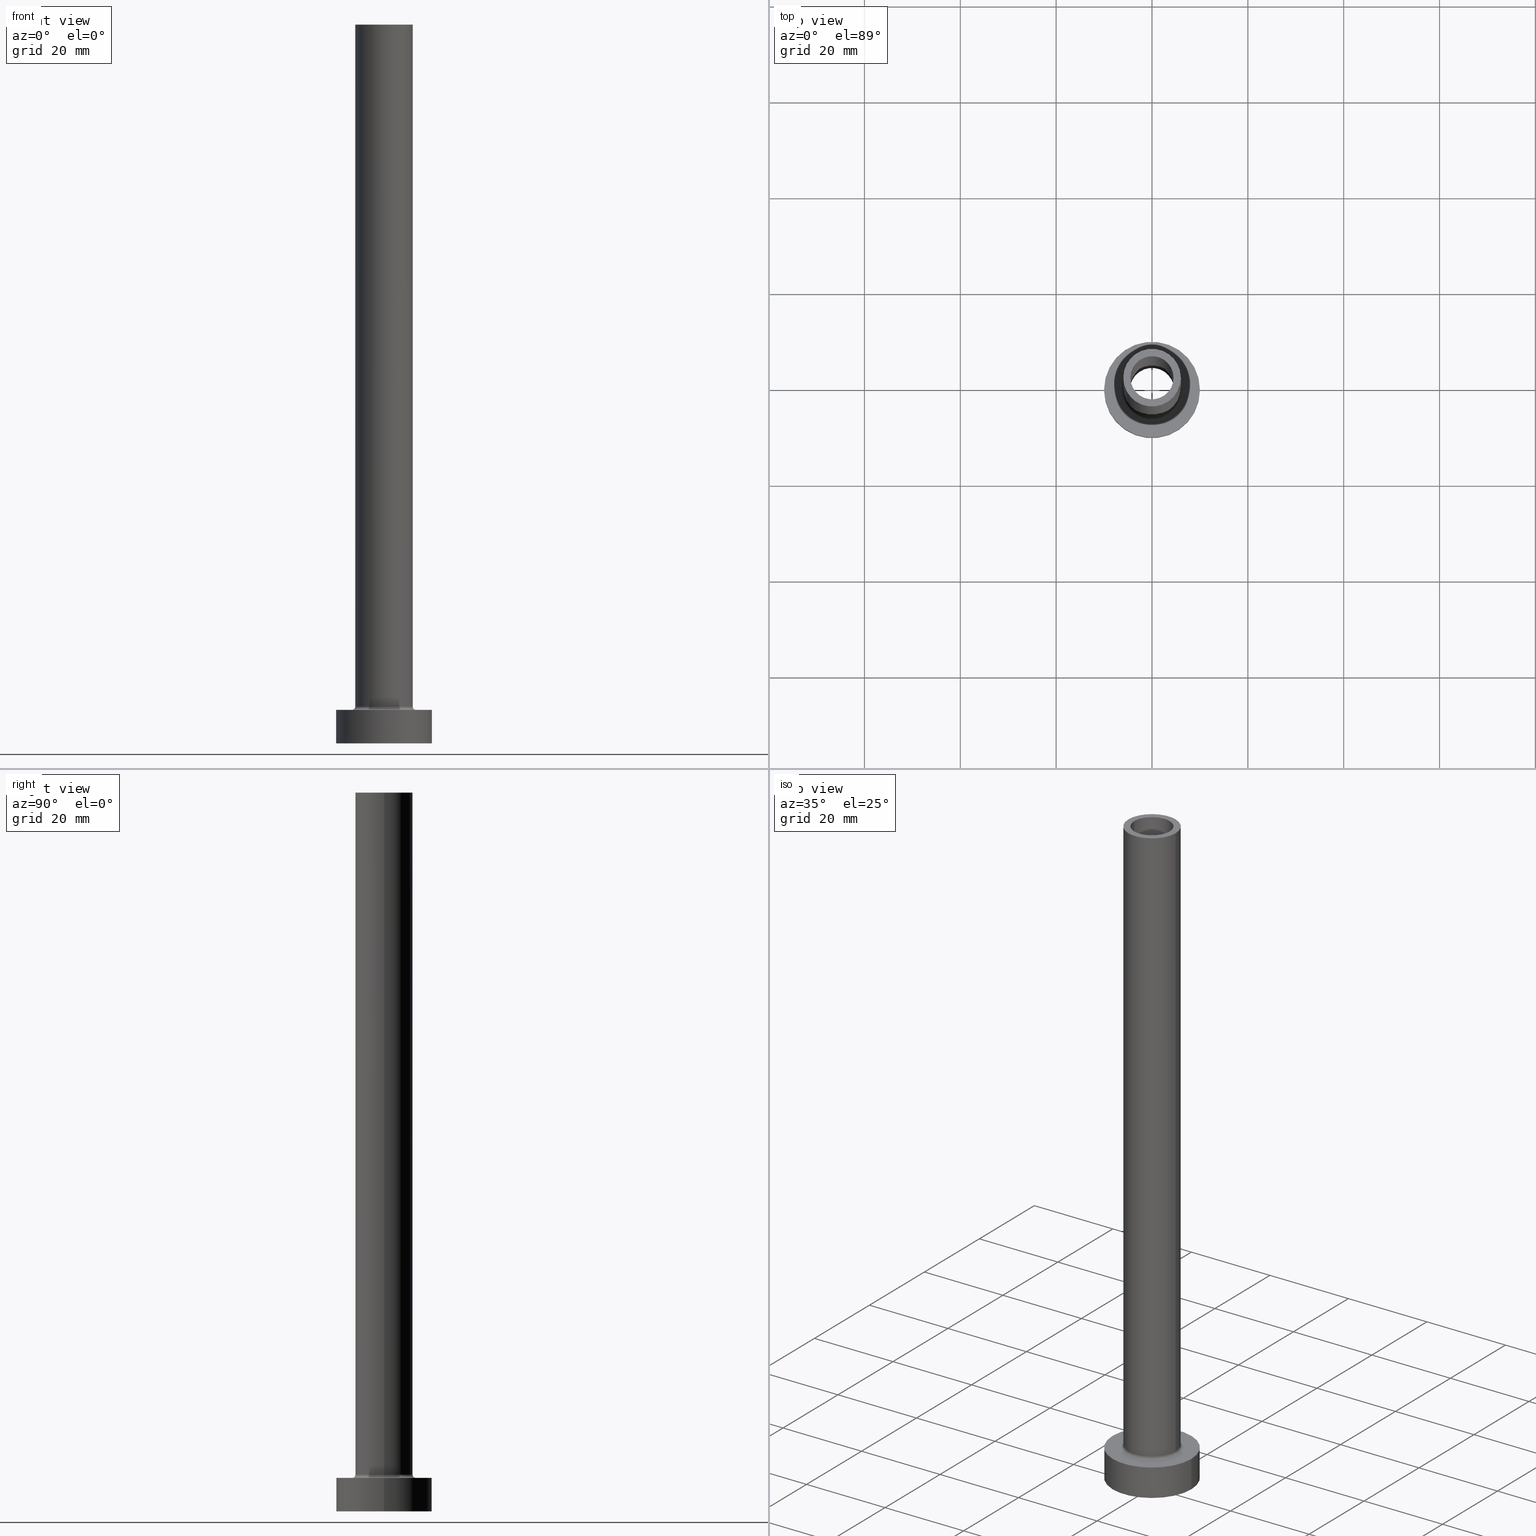
[diagram: canonical four-view strip — front | top / right | iso, engineering-drawing reading convention]
A machine part, canonical four-view strip (front | top / right | iso — engineering-drawing reading convention). The complete STEP part file that produces these views, byte-faithful:
ISO-10303-21;
HEADER;
FILE_DESCRIPTION (( 'STEP AP203' ),
    '1' );
FILE_NAME ('cd06.STEP',
    '2023-02-13T11:03:30',
    ( '' ),
    ( '' ),
    'SwSTEP 2.0',
    'SolidWorks 2019',
    '' );
FILE_SCHEMA (( 'CONFIG_CONTROL_DESIGN' ));
ENDSEC;

DATA;
#1 = AXIS2_PLACEMENT_3D ( 'NONE', #279, #373, #58 ) ;
#2 = CARTESIAN_POINT ( 'NONE',  ( 0.000000000000000000, 0.000000000000000000, 150.0000000000000000 ) ) ;
#3 = AXIS2_PLACEMENT_3D ( 'NONE', #50, #224, #45 ) ;
#4 = ORIENTED_EDGE ( 'NONE', *, *, #384, .F. ) ;
#5 = DATE_AND_TIME ( #359, #346 ) ;
#6 = EDGE_CURVE ( 'NONE', #240, #59, #307, .T. ) ;
#7 = ORIENTED_EDGE ( 'NONE', *, *, #6, .F. ) ;
#8 =( LENGTH_UNIT ( ) NAMED_UNIT ( * ) SI_UNIT ( .MILLI., .METRE. ) );
#9 = PLANE ( 'NONE',  #378 ) ;
#10 = EDGE_LOOP ( 'NONE', ( #173, #110, #321, #30 ) ) ;
#11 = CIRCLE ( 'NONE', #103, 10.00000000000000000 ) ;
#12 = CARTESIAN_POINT ( 'NONE',  ( -4.500000000000000000, 0.000000000000000000, 150.0000000000000000 ) ) ;
#13 = EDGE_CURVE ( 'NONE', #422, #59, #354, .T. ) ;
#14 = CARTESIAN_POINT ( 'NONE',  ( -10.00000000000000000, 0.000000000000000000, 7.000000000000000000 ) ) ;
#15 = ORIENTED_EDGE ( 'NONE', *, *, #88, .F. ) ;
#16 = LINE ( 'NONE', #14, #440 ) ;
#17 = CARTESIAN_POINT ( 'NONE',  ( 6.000000000000000888, 7.347880794884120722E-16, 150.0000000000000000 ) ) ;
#18 = EDGE_LOOP ( 'NONE', ( #208, #333 ) ) ;
#19 = LOCAL_TIME ( 12, 3, 30.00000000000000000, #281 ) ;
#20 = EDGE_CURVE ( 'NONE', #348, #260, #363, .T. ) ;
#21 = DIRECTION ( 'NONE',  ( 0.000000000000000000, 0.000000000000000000, 1.000000000000000000 ) ) ;
#22 = CARTESIAN_POINT ( 'NONE',  ( 0.000000000000000000, 0.000000000000000000, 105.0000000000000000 ) ) ;
#23 = CARTESIAN_POINT ( 'NONE',  ( 0.000000000000000000, 0.000000000000000000, 105.0000000000000000 ) ) ;
#24 = EDGE_LOOP ( 'NONE', ( #328, #123 ) ) ;
#25 = ADVANCED_BREP_SHAPE_REPRESENTATION ( 'cd06', ( #329, #168 ), #116 ) ;
#26 = AXIS2_PLACEMENT_3D ( 'NONE', #342, #101, #374 ) ;
#27 = CARTESIAN_POINT ( 'NONE',  ( -6.700000000000001066, 8.205133554287267548E-16, 7.000000000000006217 ) ) ;
#28 = ADVANCED_FACE ( 'NONE', ( #411 ), #419, .F. ) ;
#29 = CARTESIAN_POINT ( 'NONE',  ( 0.000000000000000000, 0.000000000000000000, 0.000000000000000000 ) ) ;
#30 = ORIENTED_EDGE ( 'NONE', *, *, #68, .F. ) ;
#31 = CIRCLE ( 'NONE', #287, 4.500000000000000000 ) ;
#32 = EDGE_LOOP ( 'NONE', ( #43, #189, #83, #383 ) ) ;
#33 = LOCAL_TIME ( 12, 3, 30.00000000000000000, #290 ) ;
#34 = EDGE_CURVE ( 'NONE', #59, #422, #31, .T. ) ;
#35 = DIRECTION ( 'NONE',  ( 0.000000000000000000, -1.000000000000000000, 0.000000000000000000 ) ) ;
#36 =( NAMED_UNIT ( * ) PLANE_ANGLE_UNIT ( ) SI_UNIT ( $, .RADIAN. ) );
#37 = CARTESIAN_POINT ( 'NONE',  ( 0.000000000000000000, 0.000000000000000000, 150.0000000000000000 ) ) ;
#38 = PERSON_AND_ORGANIZATION_ROLE ( 'design_owner' ) ;
#39 = ORIENTED_EDGE ( 'NONE', *, *, #435, .F. ) ;
#40 = APPROVAL_STATUS ( 'not_yet_approved' ) ;
#41 = PERSON ( 'NEUR�EN�', 'NEUR�EN�', 'NEUR�EN�', ('NEUR�EN�'), ('NEUR�EN�'), ('NEUR�EN�') ) ;
#42 = LOCAL_TIME ( 12, 3, 30.00000000000000000, #254 ) ;
#43 = ORIENTED_EDGE ( 'NONE', *, *, #241, .T. ) ;
#44 = APPROVAL_DATE_TIME ( #355, #367 ) ;
#45 = DIRECTION ( 'NONE',  ( 1.000000000000000000, 0.000000000000000000, 0.000000000000000000 ) ) ;
#46 = ADVANCED_FACE ( 'NONE', ( #165 ), #450, .F. ) ;
#47 = CARTESIAN_POINT ( 'NONE',  ( 4.650000000000000355, 5.694607616035192869E-16, 118.1521861300697935 ) ) ;
#48 = AXIS2_PLACEMENT_3D ( 'NONE', #210, #389, #351 ) ;
#49 = CC_DESIGN_SECURITY_CLASSIFICATION ( #335, ( #178 ) ) ;
#50 = CARTESIAN_POINT ( 'NONE',  ( 0.000000000000000000, 0.000000000000000000, 7.000000000000000000 ) ) ;
#51 = CARTESIAN_POINT ( 'NONE',  ( 0.000000000000000000, 0.000000000000000000, 7.000000000000000000 ) ) ;
#52 = ORIENTED_EDGE ( 'NONE', *, *, #444, .T. ) ;
#53 = FACE_OUTER_BOUND ( 'NONE', #318, .T. ) ;
#54 = DIRECTION ( 'NONE',  ( 1.000000000000000000, 0.000000000000000000, 0.000000000000000000 ) ) ;
#55 = CIRCLE ( 'NONE', #377, 4.500000000000000000 ) ;
#56 = ORIENTED_EDGE ( 'NONE', *, *, #241, .F. ) ;
#57 = AXIS2_PLACEMENT_3D ( 'NONE', #174, #77, #213 ) ;
#58 = DIRECTION ( 'NONE',  ( 1.000000000000000000, 0.000000000000000000, 0.000000000000000000 ) ) ;
#59 = VERTEX_POINT ( 'NONE', #243 ) ;
#60 = EDGE_CURVE ( 'NONE', #260, #348, #409, .T. ) ;
#61 = CARTESIAN_POINT ( 'NONE',  ( 0.000000000000000000, 0.000000000000000000, 7.000000000000000000 ) ) ;
#62 = CARTESIAN_POINT ( 'NONE',  ( 0.000000000000000000, 0.000000000000000000, 7.700000000000012612 ) ) ;
#63 = AXIS2_PLACEMENT_3D ( 'NONE', #297, #195, #343 ) ;
#64 = PRODUCT_DEFINITION_SHAPE ( 'NONE', 'NONE',  #403 ) ;
#65 = AXIS2_PLACEMENT_3D ( 'NONE', #51, #430, #438 ) ;
#66 = ORIENTED_EDGE ( 'NONE', *, *, #380, .F. ) ;
#67 = FACE_BOUND ( 'NONE', #379, .T. ) ;
#68 = EDGE_CURVE ( 'NONE', #387, #181, #268, .T. ) ;
#69 = AXIS2_PLACEMENT_3D ( 'NONE', #203, #35, #276 ) ;
#70 = FACE_OUTER_BOUND ( 'NONE', #439, .T. ) ;
#71 = EDGE_LOOP ( 'NONE', ( #239, #256 ) ) ;
#72 = ORGANIZATION ( 'NEUR�EN�', 'NEUR�EN�', '' ) ;
#73 = DIRECTION ( 'NONE',  ( -1.000000000000000000, 0.000000000000000000, 0.000000000000000000 ) ) ;
#74 = ORIENTED_EDGE ( 'NONE', *, *, #435, .T. ) ;
#75 = PERSON_AND_ORGANIZATION ( #41, #72 ) ;
#76 = CC_DESIGN_PERSON_AND_ORGANIZATION_ASSIGNMENT ( #218, #84, ( #403 ) ) ;
#77 = DIRECTION ( 'NONE',  ( 0.000000000000000000, 0.000000000000000000, 1.000000000000000000 ) ) ;
#78 = CALENDAR_DATE ( 2023, 13, 2 ) ;
#79 = DATE_TIME_ROLE ( 'creation_date' ) ;
#80 = AXIS2_PLACEMENT_3D ( 'NONE', #129, #416, #199 ) ;
#81 = CARTESIAN_POINT ( 'NONE',  ( -6.000000000000000888, 0.000000000000000000, 150.0000000000000000 ) ) ;
#82 = LOCAL_TIME ( 12, 3, 30.00000000000000000, #427 ) ;
#83 = ORIENTED_EDGE ( 'NONE', *, *, #20, .T. ) ;
#84 = PERSON_AND_ORGANIZATION_ROLE ( 'creator' ) ;
#85 = CARTESIAN_POINT ( 'NONE',  ( 0.000000000000000000, 0.000000000000000000, 105.0000000000000000 ) ) ;
#86 = ORIENTED_EDGE ( 'NONE', *, *, #451, .T. ) ;
#87 = CALENDAR_DATE ( 2023, 13, 2 ) ;
#88 = EDGE_CURVE ( 'NONE', #406, #300, #325, .T. ) ;
#89 = LINE ( 'NONE', #255, #253 ) ;
#90 = ORIENTED_EDGE ( 'NONE', *, *, #350, .F. ) ;
#91 = ORIENTED_EDGE ( 'NONE', *, *, #201, .F. ) ;
#92 = CARTESIAN_POINT ( 'NONE',  ( 4.500000000000000000, 5.510910596163087583E-16, 150.0000000000000000 ) ) ;
#93 = EDGE_CURVE ( 'NONE', #147, #260, #382, .T. ) ;
#94 = DIRECTION ( 'NONE',  ( 1.000000000000000000, 0.000000000000000000, 0.000000000000000000 ) ) ;
#95 = DIRECTION ( 'NONE',  ( 1.000000000000000000, 0.000000000000000000, 0.000000000000000000 ) ) ;
#96 = CARTESIAN_POINT ( 'NONE',  ( 0.000000000000000000, 0.000000000000000000, 150.0000000000000000 ) ) ;
#97 = CC_DESIGN_APPROVAL ( #308, ( #403 ) ) ;
#98 = ORIENTED_EDGE ( 'NONE', *, *, #326, .F. ) ;
#99 = ADVANCED_FACE ( 'NONE', ( #67, #70 ), #167, .T. ) ;
#100 = DIRECTION ( 'NONE',  ( 0.000000000000000000, 0.000000000000000000, 1.000000000000000000 ) ) ;
#101 = DIRECTION ( 'NONE',  ( 0.000000000000000000, 0.000000000000000000, 1.000000000000000000 ) ) ;
#102 = LINE ( 'NONE', #375, #244 ) ;
#103 = AXIS2_PLACEMENT_3D ( 'NONE', #29, #209, #94 ) ;
#104 = DESIGN_CONTEXT ( 'detailed design', #122, 'design' ) ;
#105 = DIRECTION ( 'NONE',  ( 0.000000000000000000, 0.000000000000000000, 1.000000000000000000 ) ) ;
#106 = ORIENTED_EDGE ( 'NONE', *, *, #194, .T. ) ;
#107 = APPLICATION_PROTOCOL_DEFINITION ( 'international standard', 'config_control_design', 1994, #122 ) ;
#108 = ADVANCED_FACE ( 'NONE', ( #206 ), #455, .T. ) ;
#109 = DIRECTION ( 'NONE',  ( 0.000000000000000000, 0.000000000000000000, -1.000000000000000000 ) ) ;
#110 = ORIENTED_EDGE ( 'NONE', *, *, #120, .T. ) ;
#111 = MECHANICAL_CONTEXT ( 'NONE', #183, 'mechanical' ) ;
#112 = PERSON_AND_ORGANIZATION ( #41, #72 ) ;
#113 = CARTESIAN_POINT ( 'NONE',  ( 10.00000000000000000, 1.224646799147353256E-15, 7.000000000000000000 ) ) ;
#114 = VERTEX_POINT ( 'NONE', #314 ) ;
#115 = SECURITY_CLASSIFICATION_LEVEL ( 'unclassified' ) ;
#116 =( GEOMETRIC_REPRESENTATION_CONTEXT ( 3 ) GLOBAL_UNCERTAINTY_ASSIGNED_CONTEXT ( ( #145 ) ) GLOBAL_UNIT_ASSIGNED_CONTEXT ( ( #8, #36, #460 ) ) REPRESENTATION_CONTEXT ( 'NONE', 'WORKASPACE' ) );
#117 = CIRCLE ( 'NONE', #344, 4.500000000000000000 ) ;
#118 = FACE_OUTER_BOUND ( 'NONE', #32, .T. ) ;
#119 = ORIENTED_EDGE ( 'NONE', *, *, #155, .T. ) ;
#120 = EDGE_CURVE ( 'NONE', #191, #415, #310, .T. ) ;
#121 = DIRECTION ( 'NONE',  ( 0.000000000000000000, 0.000000000000000000, -1.000000000000000000 ) ) ;
#122 = APPLICATION_CONTEXT ( 'configuration controlled 3d designs of mechanical parts and assemblies' ) ;
#123 = ORIENTED_EDGE ( 'NONE', *, *, #13, .T. ) ;
#124 = CC_DESIGN_PERSON_AND_ORGANIZATION_ASSIGNMENT ( #152, #38, ( #234 ) ) ;
#125 = CIRCLE ( 'NONE', #274, 6.000000000000000888 ) ;
#126 = DIRECTION ( 'NONE',  ( 1.000000000000000000, 0.000000000000000000, 0.000000000000000000 ) ) ;
#127 = ORIENTED_EDGE ( 'NONE', *, *, #201, .T. ) ;
#128 = VECTOR ( 'NONE', #402, 1000.000000000000000 ) ;
#129 = CARTESIAN_POINT ( 'NONE',  ( 0.000000000000000000, 0.000000000000000000, 7.700000000000012612 ) ) ;
#130 = CARTESIAN_POINT ( 'NONE',  ( -6.000000000000000888, 0.000000000000000000, 150.0000000000000000 ) ) ;
#131 = ADVANCED_FACE ( 'NONE', ( #176 ), #291, .F. ) ;
#132 = AXIS2_PLACEMENT_3D ( 'NONE', #381, #386, #247 ) ;
#133 = DIRECTION ( 'NONE',  ( 1.000000000000000000, 0.000000000000000000, -0.000000000000000000 ) ) ;
#134 = AXIS2_PLACEMENT_3D ( 'NONE', #233, #197, #341 ) ;
#135 = CARTESIAN_POINT ( 'NONE',  ( 0.000000000000000000, 0.000000000000000000, 105.0000000000000000 ) ) ;
#136 = CARTESIAN_POINT ( 'NONE',  ( 6.000000000000000888, 7.347880794884120722E-16, 7.700000000000012612 ) ) ;
#137 = CARTESIAN_POINT ( 'NONE',  ( 0.000000000000000000, 0.000000000000000000, 150.0000000000000000 ) ) ;
#138 = CARTESIAN_POINT ( 'NONE',  ( -4.500000000000000000, 0.000000000000000000, 150.0000000000000000 ) ) ;
#139 = AXIS2_PLACEMENT_3D ( 'NONE', #154, #292, #126 ) ;
#140 = DIRECTION ( 'NONE',  ( 1.224646799147353207E-16, 1.000000000000000000, -0.000000000000000000 ) ) ;
#141 = DIRECTION ( 'NONE',  ( 0.000000000000000000, 0.000000000000000000, -1.000000000000000000 ) ) ;
#142 = ORIENTED_EDGE ( 'NONE', *, *, #338, .T. ) ;
#143 = EDGE_CURVE ( 'NONE', #278, #240, #117, .T. ) ;
#144 = APPROVAL_STATUS ( 'not_yet_approved' ) ;
#145 = UNCERTAINTY_MEASURE_WITH_UNIT (LENGTH_MEASURE( 1.000000000000000082E-05 ), #8, 'distance_accuracy_value', 'NONE');
#146 = FACE_OUTER_BOUND ( 'NONE', #306, .T. ) ;
#147 = VERTEX_POINT ( 'NONE', #392 ) ;
#148 = APPLICATION_PROTOCOL_DEFINITION ( 'international standard', 'config_control_design', 1994, #183 ) ;
#149 = EDGE_CURVE ( 'NONE', #114, #348, #320, .T. ) ;
#150 = AXIS2_PLACEMENT_3D ( 'NONE', #137, #237, #376 ) ;
#151 = ORIENTED_EDGE ( 'NONE', *, *, #68, .T. ) ;
#152 = PERSON_AND_ORGANIZATION ( #41, #72 ) ;
#153 = CC_DESIGN_APPROVAL ( #315, ( #178 ) ) ;
#154 = CARTESIAN_POINT ( 'NONE',  ( 0.000000000000000000, 0.000000000000000000, 105.0000000000000000 ) ) ;
#155 = EDGE_CURVE ( 'NONE', #181, #415, #263, .T. ) ;
#156 = DIRECTION ( 'NONE',  ( -0.000000000000000000, -0.000000000000000000, -1.000000000000000000 ) ) ;
#157 = AXIS2_PLACEMENT_3D ( 'NONE', #22, #228, #340 ) ;
#158 = VERTEX_POINT ( 'NONE', #113 ) ;
#159 = FACE_BOUND ( 'NONE', #337, .T. ) ;
#160 = DIRECTION ( 'NONE',  ( 1.000000000000000000, 0.000000000000000000, 0.000000000000000000 ) ) ;
#161 = CARTESIAN_POINT ( 'NONE',  ( 0.000000000000000000, 0.000000000000000000, 0.000000000000000000 ) ) ;
#162 = DIRECTION ( 'NONE',  ( 0.000000000000000000, 0.000000000000000000, 1.000000000000000000 ) ) ;
#163 = EDGE_CURVE ( 'NONE', #415, #181, #179, .T. ) ;
#164 = CARTESIAN_POINT ( 'NONE',  ( 10.00000000000000000, 1.224646799147353256E-15, 0.000000000000000000 ) ) ;
#165 = FACE_OUTER_BOUND ( 'NONE', #447, .T. ) ;
#166 = EDGE_CURVE ( 'NONE', #300, #191, #288, .T. ) ;
#167 = PLANE ( 'NONE',  #48 ) ;
#168 = AXIS2_PLACEMENT_3D ( 'NONE', #361, #425, #316 ) ;
#169 = ORIENTED_EDGE ( 'NONE', *, *, #418, .T. ) ;
#170 = CARTESIAN_POINT ( 'NONE',  ( -10.00000000000000000, 0.000000000000000000, 7.000000000000000000 ) ) ;
#171 = CC_DESIGN_DATE_AND_TIME_ASSIGNMENT ( #352, #175, ( #335 ) ) ;
#172 = DIRECTION ( 'NONE',  ( -0.000000000000000000, -0.000000000000000000, -1.000000000000000000 ) ) ;
#173 = ORIENTED_EDGE ( 'NONE', *, *, #451, .F. ) ;
#174 = CARTESIAN_POINT ( 'NONE',  ( 0.000000000000000000, 0.000000000000000000, 7.700000000000012612 ) ) ;
#175 = DATE_TIME_ROLE ( 'classification_date' ) ;
#176 = FACE_OUTER_BOUND ( 'NONE', #10, .T. ) ;
#177 = EDGE_LOOP ( 'NONE', ( #196, #266, #302, #434 ) ) ;
#178 = PRODUCT_DEFINITION_FORMATION_WITH_SPECIFIED_SOURCE ( 'LIBOVOLN�', '', #234, .NOT_KNOWN. ) ;
#179 = CIRCLE ( 'NONE', #65, 6.700000000000001066 ) ;
#180 = DIRECTION ( 'NONE',  ( -1.000000000000000000, 1.224646799147353454E-16, 0.000000000000000000 ) ) ;
#181 = VERTEX_POINT ( 'NONE', #364 ) ;
#182 = SHAPE_DEFINITION_REPRESENTATION ( #64, #25 ) ;
#183 = APPLICATION_CONTEXT ( 'configuration controlled 3d designs of mechanical parts and assemblies' ) ;
#184 = CARTESIAN_POINT ( 'NONE',  ( -10.00000000000000000, 0.000000000000000000, 0.000000000000000000 ) ) ;
#185 = AXIS2_PLACEMENT_3D ( 'NONE', #96, #141, #73 ) ;
#186 = DIRECTION ( 'NONE',  ( 1.000000000000000000, 0.000000000000000000, -0.000000000000000000 ) ) ;
#187 = ADVANCED_FACE ( 'NONE', ( #399, #53 ), #9, .F. ) ;
#188 = DIRECTION ( 'NONE',  ( 0.000000000000000000, 0.000000000000000000, 1.000000000000000000 ) ) ;
#189 = ORIENTED_EDGE ( 'NONE', *, *, #149, .T. ) ;
#190 = DIRECTION ( 'NONE',  ( -0.000000000000000000, -0.000000000000000000, -1.000000000000000000 ) ) ;
#191 = VERTEX_POINT ( 'NONE', #330 ) ;
#192 = CARTESIAN_POINT ( 'NONE',  ( 4.500000000000000000, 5.510910596163087583E-16, 150.0000000000000000 ) ) ;
#193 = AXIS2_PLACEMENT_3D ( 'NONE', #345, #140, #180 ) ;
#194 = EDGE_CURVE ( 'NONE', #431, #225, #16, .T. ) ;
#195 = DIRECTION ( 'NONE',  ( 0.000000000000000000, 0.000000000000000000, 1.000000000000000000 ) ) ;
#196 = ORIENTED_EDGE ( 'NONE', *, *, #149, .F. ) ;
#197 = DIRECTION ( 'NONE',  ( -0.000000000000000000, -0.000000000000000000, -1.000000000000000000 ) ) ;
#198 = DIRECTION ( 'NONE',  ( 0.000000000000000000, 0.000000000000000000, 1.000000000000000000 ) ) ;
#199 = DIRECTION ( 'NONE',  ( 1.000000000000000000, 0.000000000000000000, 0.000000000000000000 ) ) ;
#200 = DIRECTION ( 'NONE',  ( 1.000000000000000000, 0.000000000000000000, 0.000000000000000000 ) ) ;
#201 = EDGE_CURVE ( 'NONE', #158, #323, #89, .T. ) ;
#202 = ORIENTED_EDGE ( 'NONE', *, *, #444, .F. ) ;
#203 = CARTESIAN_POINT ( 'NONE',  ( 6.700000000000001066, 0.000000000000000000, 7.700000000000012612 ) ) ;
#204 = ORIENTED_EDGE ( 'NONE', *, *, #166, .F. ) ;
#205 = AXIS2_PLACEMENT_3D ( 'NONE', #347, #421, #280 ) ;
#206 = FACE_OUTER_BOUND ( 'NONE', #252, .T. ) ;
#207 = AXIS2_PLACEMENT_3D ( 'NONE', #332, #251, #404 ) ;
#208 = ORIENTED_EDGE ( 'NONE', *, *, #338, .F. ) ;
#209 = DIRECTION ( 'NONE',  ( 0.000000000000000000, 0.000000000000000000, 1.000000000000000000 ) ) ;
#210 = CARTESIAN_POINT ( 'NONE',  ( 0.000000000000000000, 0.000000000000000000, 150.0000000000000000 ) ) ;
#211 = ORIENTED_EDGE ( 'NONE', *, *, #194, .F. ) ;
#212 = PERSON_AND_ORGANIZATION_ROLE ( 'classification_officer' ) ;
#213 = DIRECTION ( 'NONE',  ( 1.000000000000000000, 0.000000000000000000, 0.000000000000000000 ) ) ;
#214 = ORIENTED_EDGE ( 'NONE', *, *, #6, .T. ) ;
#215 = DATE_AND_TIME ( #87, #82 ) ;
#216 = ORIENTED_EDGE ( 'NONE', *, *, #34, .F. ) ;
#217 = CIRCLE ( 'NONE', #80, 6.000000000000000888 ) ;
#218 = PERSON_AND_ORGANIZATION ( #41, #72 ) ;
#219 = CARTESIAN_POINT ( 'NONE',  ( 0.000000000000000000, 0.000000000000000000, 150.0000000000000000 ) ) ;
#220 = ORIENTED_EDGE ( 'NONE', *, *, #163, .F. ) ;
#221 = DIRECTION ( 'NONE',  ( 0.000000000000000000, 0.000000000000000000, -1.000000000000000000 ) ) ;
#222 = ADVANCED_FACE ( 'NONE', ( #118 ), #294, .F. ) ;
#223 = AXIS2_PLACEMENT_3D ( 'NONE', #161, #408, #95 ) ;
#224 = DIRECTION ( 'NONE',  ( -0.000000000000000000, -0.000000000000000000, -1.000000000000000000 ) ) ;
#225 = VERTEX_POINT ( 'NONE', #184 ) ;
#226 = DIRECTION ( 'NONE',  ( 0.000000000000000000, 0.000000000000000000, -1.000000000000000000 ) ) ;
#227 = DIRECTION ( 'NONE',  ( 1.000000000000000000, 0.000000000000000000, 0.000000000000000000 ) ) ;
#228 = DIRECTION ( 'NONE',  ( 0.000000000000000000, 0.000000000000000000, 1.000000000000000000 ) ) ;
#229 = CC_DESIGN_PERSON_AND_ORGANIZATION_ASSIGNMENT ( #75, #401, ( #178 ) ) ;
#230 = APPROVAL_PERSON_ORGANIZATION ( #286, #308, #324 ) ;
#231 = PLANE ( 'NONE',  #356 ) ;
#232 = VECTOR ( 'NONE', #322, 1000.000000000000000 ) ;
#233 = CARTESIAN_POINT ( 'NONE',  ( 0.000000000000000000, 0.000000000000000000, 7.000000000000000000 ) ) ;
#234 = PRODUCT ( 'cd06', 'cd06', '', ( #111 ) ) ;
#235 = CC_DESIGN_PERSON_AND_ORGANIZATION_ASSIGNMENT ( #313, #212, ( #335 ) ) ;
#236 = DIRECTION ( 'NONE',  ( 1.000000000000000000, 0.000000000000000000, 0.000000000000000000 ) ) ;
#237 = DIRECTION ( 'NONE',  ( 0.000000000000000000, 0.000000000000000000, -1.000000000000000000 ) ) ;
#238 = AXIS2_PLACEMENT_3D ( 'NONE', #61, #100, #54 ) ;
#239 = ORIENTED_EDGE ( 'NONE', *, *, #384, .T. ) ;
#240 = VERTEX_POINT ( 'NONE', #12 ) ;
#241 = EDGE_CURVE ( 'NONE', #147, #114, #448, .T. ) ;
#242 = DIRECTION ( 'NONE',  ( 1.000000000000000000, 0.000000000000000000, 0.000000000000000000 ) ) ;
#243 = CARTESIAN_POINT ( 'NONE',  ( -4.500000000000000000, 0.000000000000000000, 105.0000000000000000 ) ) ;
#244 = VECTOR ( 'NONE', #312, 1000.000000000000000 ) ;
#245 = ORIENTED_EDGE ( 'NONE', *, *, #350, .T. ) ;
#246 = ADVANCED_FACE ( 'NONE', ( #264 ), #368, .F. ) ;
#247 = DIRECTION ( 'NONE',  ( 1.000000000000000000, 0.000000000000000000, 0.000000000000000000 ) ) ;
#248 = ORIENTED_EDGE ( 'NONE', *, *, #88, .T. ) ;
#249 = PERSON_AND_ORGANIZATION_ROLE ( 'design_supplier' ) ;
#250 = VECTOR ( 'NONE', #372, 1000.000000000000000 ) ;
#251 = DIRECTION ( 'NONE',  ( -0.000000000000000000, -0.000000000000000000, -1.000000000000000000 ) ) ;
#252 = EDGE_LOOP ( 'NONE', ( #15, #52, #74, #204 ) ) ;
#253 = VECTOR ( 'NONE', #190, 1000.000000000000000 ) ;
#254 = COORDINATED_UNIVERSAL_TIME_OFFSET ( 1, 0, .AHEAD. ) ;
#255 = CARTESIAN_POINT ( 'NONE',  ( 10.00000000000000000, 1.224646799147353256E-15, 7.000000000000000000 ) ) ;
#256 = ORIENTED_EDGE ( 'NONE', *, *, #380, .T. ) ;
#257 = EDGE_CURVE ( 'NONE', #278, #422, #433, .T. ) ;
#258 = COORDINATED_UNIVERSAL_TIME_OFFSET ( 1, 0, .AHEAD. ) ;
#259 = CARTESIAN_POINT ( 'NONE',  ( -4.650000000000000355, 0.000000000000000000, 0.000000000000000000 ) ) ;
#260 = VERTEX_POINT ( 'NONE', #259 ) ;
#261 = CYLINDRICAL_SURFACE ( 'NONE', #207, 10.00000000000000000 ) ;
#262 = AXIS2_PLACEMENT_3D ( 'NONE', #23, #299, #227 ) ;
#263 = CIRCLE ( 'NONE', #3, 6.700000000000001066 ) ;
#264 = FACE_OUTER_BOUND ( 'NONE', #177, .T. ) ;
#265 = ADVANCED_FACE ( 'NONE', ( #436 ), #261, .T. ) ;
#266 = ORIENTED_EDGE ( 'NONE', *, *, #326, .T. ) ;
#267 = FACE_BOUND ( 'NONE', #453, .T. ) ;
#268 = CIRCLE ( 'NONE', #69, 0.7000000000000000666 ) ;
#269 = ORIENTED_EDGE ( 'NONE', *, *, #418, .F. ) ;
#270 = CIRCLE ( 'NONE', #1, 10.00000000000000000 ) ;
#271 = FACE_OUTER_BOUND ( 'NONE', #289, .T. ) ;
#272 = ADVANCED_FACE ( 'NONE', ( #146 ), #285, .T. ) ;
#273 = CARTESIAN_POINT ( 'NONE',  ( 4.500000000000000000, 5.510910596163087583E-16, 105.0000000000000000 ) ) ;
#274 = AXIS2_PLACEMENT_3D ( 'NONE', #62, #105, #242 ) ;
#275 = APPROVAL_PERSON_ORGANIZATION ( #388, #315, #429 ) ;
#276 = DIRECTION ( 'NONE',  ( 0.000000000000000000, 0.000000000000000000, -1.000000000000000000 ) ) ;
#277 = ADVANCED_FACE ( 'NONE', ( #301 ), #457, .F. ) ;
#278 = VERTEX_POINT ( 'NONE', #192 ) ;
#279 = CARTESIAN_POINT ( 'NONE',  ( 0.000000000000000000, 0.000000000000000000, 0.000000000000000000 ) ) ;
#280 = DIRECTION ( 'NONE',  ( 1.000000000000000000, 0.000000000000000000, 0.000000000000000000 ) ) ;
#281 = COORDINATED_UNIVERSAL_TIME_OFFSET ( 1, 0, .AHEAD. ) ;
#282 = PRODUCT_RELATED_PRODUCT_CATEGORY ( 'detail', '', ( #234 ) ) ;
#283 = DIRECTION ( 'NONE',  ( 1.000000000000000000, 0.000000000000000000, 0.000000000000000000 ) ) ;
#284 = APPROVAL_DATE_TIME ( #5, #315 ) ;
#285 = CYLINDRICAL_SURFACE ( 'NONE', #304, 6.000000000000000888 ) ;
#286 = PERSON_AND_ORGANIZATION ( #41, #72 ) ;
#287 = AXIS2_PLACEMENT_3D ( 'NONE', #135, #198, #200 ) ;
#288 = LINE ( 'NONE', #81, #128 ) ;
#289 = EDGE_LOOP ( 'NONE', ( #91, #4, #106, #142 ) ) ;
#290 = COORDINATED_UNIVERSAL_TIME_OFFSET ( 1, 0, .AHEAD. ) ;
#291 = TOROIDAL_SURFACE ( 'NONE', #57, 6.700000000000001066, 0.6999999999999999556 ) ;
#292 = DIRECTION ( 'NONE',  ( 0.000000000000000000, 0.000000000000000000, 1.000000000000000000 ) ) ;
#293 = CARTESIAN_POINT ( 'NONE',  ( 0.000000000000000000, 0.000000000000000000, 118.1521861300697935 ) ) ;
#294 = CYLINDRICAL_SURFACE ( 'NONE', #296, 4.650000000000000355 ) ;
#295 = ORIENTED_EDGE ( 'NONE', *, *, #120, .F. ) ;
#296 = AXIS2_PLACEMENT_3D ( 'NONE', #293, #221, #362 ) ;
#297 = CARTESIAN_POINT ( 'NONE',  ( 0.000000000000000000, 0.000000000000000000, 0.000000000000000000 ) ) ;
#298 = ORIENTED_EDGE ( 'NONE', *, *, #163, .T. ) ;
#299 = DIRECTION ( 'NONE',  ( 0.000000000000000000, 0.000000000000000000, 1.000000000000000000 ) ) ;
#300 = VERTEX_POINT ( 'NONE', #130 ) ;
#301 = FACE_OUTER_BOUND ( 'NONE', #417, .T. ) ;
#302 = ORIENTED_EDGE ( 'NONE', *, *, #93, .T. ) ;
#303 = EDGE_CURVE ( 'NONE', #323, #225, #270, .T. ) ;
#304 = AXIS2_PLACEMENT_3D ( 'NONE', #219, #360, #371 ) ;
#305 = CARTESIAN_POINT ( 'NONE',  ( 0.000000000000000000, 0.000000000000000000, 150.0000000000000000 ) ) ;
#306 = EDGE_LOOP ( 'NONE', ( #202, #269, #393, #86 ) ) ;
#307 = LINE ( 'NONE', #138, #250 ) ;
#308 = APPROVAL ( #40, 'NEUR�EN�' ) ;
#309 = CIRCLE ( 'NONE', #317, 6.000000000000000888 ) ;
#310 = CIRCLE ( 'NONE', #193, 0.7000000000000000666 ) ;
#311 = ORIENTED_EDGE ( 'NONE', *, *, #20, .F. ) ;
#312 = DIRECTION ( 'NONE',  ( -0.000000000000000000, -0.000000000000000000, -1.000000000000000000 ) ) ;
#313 = PERSON_AND_ORGANIZATION ( #41, #72 ) ;
#314 = CARTESIAN_POINT ( 'NONE',  ( 4.650000000000000355, 5.694607616035192869E-16, 105.0000000000000000 ) ) ;
#315 = APPROVAL ( #432, 'NEUR�EN�' ) ;
#316 = DIRECTION ( 'NONE',  ( 1.000000000000000000, 0.000000000000000000, 0.000000000000000000 ) ) ;
#317 = AXIS2_PLACEMENT_3D ( 'NONE', #305, #449, #236 ) ;
#318 = EDGE_LOOP ( 'NONE', ( #56, #98 ) ) ;
#319 = APPROVAL_DATE_TIME ( #398, #308 ) ;
#320 = LINE ( 'NONE', #47, #232 ) ;
#321 = ORIENTED_EDGE ( 'NONE', *, *, #155, .F. ) ;
#322 = DIRECTION ( 'NONE',  ( 0.000000000000000000, 0.000000000000000000, -1.000000000000000000 ) ) ;
#323 = VERTEX_POINT ( 'NONE', #164 ) ;
#324 = APPROVAL_ROLE ( '' ) ;
#325 = CIRCLE ( 'NONE', #132, 6.000000000000000888 ) ;
#326 = EDGE_CURVE ( 'NONE', #114, #147, #454, .T. ) ;
#327 = CIRCLE ( 'NONE', #238, 10.00000000000000000 ) ;
#328 = ORIENTED_EDGE ( 'NONE', *, *, #34, .T. ) ;
#329 = MANIFOLD_SOLID_BREP ( 'Odebrat vysunut�m4', #437 ) ;
#330 = CARTESIAN_POINT ( 'NONE',  ( -6.000000000000000888, 0.000000000000000000, 7.700000000000012612 ) ) ;
#331 = ADVANCED_FACE ( 'NONE', ( #159, #443 ), #424, .F. ) ;
#332 = CARTESIAN_POINT ( 'NONE',  ( 0.000000000000000000, 0.000000000000000000, 7.000000000000000000 ) ) ;
#333 = ORIENTED_EDGE ( 'NONE', *, *, #303, .F. ) ;
#334 = AXIS2_PLACEMENT_3D ( 'NONE', #441, #21, #160 ) ;
#335 = SECURITY_CLASSIFICATION ( '', '', #115 ) ;
#336 = CARTESIAN_POINT ( 'NONE',  ( 0.000000000000000000, 0.000000000000000000, 150.0000000000000000 ) ) ;
#337 = EDGE_LOOP ( 'NONE', ( #456, #311 ) ) ;
#338 = EDGE_CURVE ( 'NONE', #225, #323, #11, .T. ) ;
#339 = DIRECTION ( 'NONE',  ( 1.000000000000000000, 0.000000000000000000, 0.000000000000000000 ) ) ;
#340 = DIRECTION ( 'NONE',  ( 1.000000000000000000, 0.000000000000000000, 0.000000000000000000 ) ) ;
#341 = DIRECTION ( 'NONE',  ( -1.000000000000000000, 0.000000000000000000, 0.000000000000000000 ) ) ;
#342 = CARTESIAN_POINT ( 'NONE',  ( 0.000000000000000000, 0.000000000000000000, 7.700000000000012612 ) ) ;
#343 = DIRECTION ( 'NONE',  ( 1.000000000000000000, 0.000000000000000000, -0.000000000000000000 ) ) ;
#344 = AXIS2_PLACEMENT_3D ( 'NONE', #2, #357, #283 ) ;
#345 = CARTESIAN_POINT ( 'NONE',  ( -6.700000000000001066, 8.205133554287267548E-16, 7.700000000000012612 ) ) ;
#346 = LOCAL_TIME ( 12, 3, 30.00000000000000000, #258 ) ;
#347 = CARTESIAN_POINT ( 'NONE',  ( 0.000000000000000000, 0.000000000000000000, 0.000000000000000000 ) ) ;
#348 = VERTEX_POINT ( 'NONE', #369 ) ;
#349 = CALENDAR_DATE ( 2023, 13, 2 ) ;
#350 = EDGE_CURVE ( 'NONE', #240, #278, #55, .T. ) ;
#351 = DIRECTION ( 'NONE',  ( 1.000000000000000000, 0.000000000000000000, -0.000000000000000000 ) ) ;
#352 = DATE_AND_TIME ( #394, #42 ) ;
#353 = ORIENTED_EDGE ( 'NONE', *, *, #257, .T. ) ;
#354 = CIRCLE ( 'NONE', #157, 4.500000000000000000 ) ;
#355 = DATE_AND_TIME ( #78, #19 ) ;
#356 = AXIS2_PLACEMENT_3D ( 'NONE', #407, #446, #133 ) ;
#357 = DIRECTION ( 'NONE',  ( 0.000000000000000000, 0.000000000000000000, 1.000000000000000000 ) ) ;
#358 = ORIENTED_EDGE ( 'NONE', *, *, #257, .F. ) ;
#359 = CALENDAR_DATE ( 2023, 13, 2 ) ;
#360 = DIRECTION ( 'NONE',  ( -0.000000000000000000, -0.000000000000000000, -1.000000000000000000 ) ) ;
#361 = CARTESIAN_POINT ( 'NONE',  ( 0.000000000000000000, 0.000000000000000000, 0.000000000000000000 ) ) ;
#362 = DIRECTION ( 'NONE',  ( -1.000000000000000000, 0.000000000000000000, 0.000000000000000000 ) ) ;
#363 = CIRCLE ( 'NONE', #223, 4.650000000000000355 ) ;
#364 = CARTESIAN_POINT ( 'NONE',  ( 6.700000000000001066, 0.000000000000000000, 7.000000000000006217 ) ) ;
#365 = AXIS2_PLACEMENT_3D ( 'NONE', #37, #172, #458 ) ;
#366 = CARTESIAN_POINT ( 'NONE',  ( 0.000000000000000000, 0.000000000000000000, 118.1521861300697935 ) ) ;
#367 = APPROVAL ( #144, 'NEUR�EN�' ) ;
#368 = CYLINDRICAL_SURFACE ( 'NONE', #395, 4.650000000000000355 ) ;
#369 = CARTESIAN_POINT ( 'NONE',  ( 4.650000000000000355, 5.694607616035192869E-16, 0.000000000000000000 ) ) ;
#370 = CIRCLE ( 'NONE', #334, 10.00000000000000000 ) ;
#371 = DIRECTION ( 'NONE',  ( -1.000000000000000000, 0.000000000000000000, 0.000000000000000000 ) ) ;
#372 = DIRECTION ( 'NONE',  ( 0.000000000000000000, 0.000000000000000000, -1.000000000000000000 ) ) ;
#373 = DIRECTION ( 'NONE',  ( 0.000000000000000000, 0.000000000000000000, 1.000000000000000000 ) ) ;
#374 = DIRECTION ( 'NONE',  ( 1.000000000000000000, 0.000000000000000000, 0.000000000000000000 ) ) ;
#375 = CARTESIAN_POINT ( 'NONE',  ( 6.000000000000000888, 7.347880794884120722E-16, 150.0000000000000000 ) ) ;
#376 = DIRECTION ( 'NONE',  ( -1.000000000000000000, 0.000000000000000000, 0.000000000000000000 ) ) ;
#377 = AXIS2_PLACEMENT_3D ( 'NONE', #336, #162, #339 ) ;
#378 = AXIS2_PLACEMENT_3D ( 'NONE', #85, #188, #186 ) ;
#379 = EDGE_LOOP ( 'NONE', ( #90, #442 ) ) ;
#380 = EDGE_CURVE ( 'NONE', #158, #431, #327, .T. ) ;
#381 = CARTESIAN_POINT ( 'NONE',  ( 0.000000000000000000, 0.000000000000000000, 150.0000000000000000 ) ) ;
#382 = LINE ( 'NONE', #426, #445 ) ;
#383 = ORIENTED_EDGE ( 'NONE', *, *, #93, .F. ) ;
#384 = EDGE_CURVE ( 'NONE', #431, #158, #370, .T. ) ;
#385 = CC_DESIGN_APPROVAL ( #367, ( #335 ) ) ;
#386 = DIRECTION ( 'NONE',  ( 0.000000000000000000, 0.000000000000000000, 1.000000000000000000 ) ) ;
#387 = VERTEX_POINT ( 'NONE', #136 ) ;
#388 = PERSON_AND_ORGANIZATION ( #41, #72 ) ;
#389 = DIRECTION ( 'NONE',  ( 0.000000000000000000, 0.000000000000000000, 1.000000000000000000 ) ) ;
#390 = ORIENTED_EDGE ( 'NONE', *, *, #13, .F. ) ;
#391 = APPROVAL_ROLE ( '' ) ;
#392 = CARTESIAN_POINT ( 'NONE',  ( -4.650000000000000355, 0.000000000000000000, 105.0000000000000000 ) ) ;
#393 = ORIENTED_EDGE ( 'NONE', *, *, #166, .T. ) ;
#394 = CALENDAR_DATE ( 2023, 13, 2 ) ;
#395 = AXIS2_PLACEMENT_3D ( 'NONE', #366, #121, #405 ) ;
#396 = EDGE_LOOP ( 'NONE', ( #295, #39, #151, #220 ) ) ;
#397 = ADVANCED_FACE ( 'NONE', ( #267, #410 ), #231, .T. ) ;
#398 = DATE_AND_TIME ( #349, #33 ) ;
#399 = FACE_BOUND ( 'NONE', #24, .T. ) ;
#400 = ORIENTED_EDGE ( 'NONE', *, *, #143, .T. ) ;
#401 = PERSON_AND_ORGANIZATION_ROLE ( 'creator' ) ;
#402 = DIRECTION ( 'NONE',  ( -0.000000000000000000, -0.000000000000000000, -1.000000000000000000 ) ) ;
#403 = PRODUCT_DEFINITION ( 'NEZN�M�', '', #178, #104 ) ;
#404 = DIRECTION ( 'NONE',  ( -1.000000000000000000, 0.000000000000000000, 0.000000000000000000 ) ) ;
#405 = DIRECTION ( 'NONE',  ( -1.000000000000000000, 0.000000000000000000, 0.000000000000000000 ) ) ;
#406 = VERTEX_POINT ( 'NONE', #17 ) ;
#407 = CARTESIAN_POINT ( 'NONE',  ( 0.000000000000000000, 0.000000000000000000, 7.000000000000000000 ) ) ;
#408 = DIRECTION ( 'NONE',  ( -0.000000000000000000, -0.000000000000000000, -1.000000000000000000 ) ) ;
#409 = CIRCLE ( 'NONE', #205, 4.650000000000000355 ) ;
#410 = FACE_OUTER_BOUND ( 'NONE', #71, .T. ) ;
#411 = FACE_OUTER_BOUND ( 'NONE', #396, .T. ) ;
#412 = ADVANCED_FACE ( 'NONE', ( #271 ), #414, .T. ) ;
#413 = APPROVAL_PERSON_ORGANIZATION ( #461, #367, #391 ) ;
#414 = CYLINDRICAL_SURFACE ( 'NONE', #134, 10.00000000000000000 ) ;
#415 = VERTEX_POINT ( 'NONE', #27 ) ;
#416 = DIRECTION ( 'NONE',  ( 0.000000000000000000, 0.000000000000000000, 1.000000000000000000 ) ) ;
#417 = EDGE_LOOP ( 'NONE', ( #245, #353, #216, #7 ) ) ;
#418 = EDGE_CURVE ( 'NONE', #300, #406, #309, .T. ) ;
#419 = TOROIDAL_SURFACE ( 'NONE', #26, 6.700000000000001066, 0.6999999999999999556 ) ;
#420 = VECTOR ( 'NONE', #226, 1000.000000000000000 ) ;
#421 = DIRECTION ( 'NONE',  ( -0.000000000000000000, -0.000000000000000000, -1.000000000000000000 ) ) ;
#422 = VERTEX_POINT ( 'NONE', #273 ) ;
#423 = CC_DESIGN_DATE_AND_TIME_ASSIGNMENT ( #215, #79, ( #403 ) ) ;
#424 = PLANE ( 'NONE',  #63 ) ;
#425 = DIRECTION ( 'NONE',  ( 0.000000000000000000, 0.000000000000000000, 1.000000000000000000 ) ) ;
#426 = CARTESIAN_POINT ( 'NONE',  ( -4.650000000000000355, 0.000000000000000000, 118.1521861300697935 ) ) ;
#427 = COORDINATED_UNIVERSAL_TIME_OFFSET ( 1, 0, .AHEAD. ) ;
#428 = ORIENTED_EDGE ( 'NONE', *, *, #303, .T. ) ;
#429 = APPROVAL_ROLE ( '' ) ;
#430 = DIRECTION ( 'NONE',  ( -0.000000000000000000, -0.000000000000000000, -1.000000000000000000 ) ) ;
#431 = VERTEX_POINT ( 'NONE', #170 ) ;
#432 = APPROVAL_STATUS ( 'not_yet_approved' ) ;
#433 = LINE ( 'NONE', #92, #420 ) ;
#434 = ORIENTED_EDGE ( 'NONE', *, *, #60, .T. ) ;
#435 = EDGE_CURVE ( 'NONE', #387, #191, #217, .T. ) ;
#436 = FACE_OUTER_BOUND ( 'NONE', #452, .T. ) ;
#437 = CLOSED_SHELL ( 'NONE', ( #277, #222, #131, #108, #265, #412, #397, #331, #272, #99, #28, #246, #187, #46 ) ) ;
#438 = DIRECTION ( 'NONE',  ( 1.000000000000000000, 0.000000000000000000, 0.000000000000000000 ) ) ;
#439 = EDGE_LOOP ( 'NONE', ( #169, #248 ) ) ;
#440 = VECTOR ( 'NONE', #156, 1000.000000000000000 ) ;
#441 = CARTESIAN_POINT ( 'NONE',  ( 0.000000000000000000, 0.000000000000000000, 7.000000000000000000 ) ) ;
#442 = ORIENTED_EDGE ( 'NONE', *, *, #143, .F. ) ;
#443 = FACE_OUTER_BOUND ( 'NONE', #18, .T. ) ;
#444 = EDGE_CURVE ( 'NONE', #406, #387, #102, .T. ) ;
#445 = VECTOR ( 'NONE', #109, 1000.000000000000000 ) ;
#446 = DIRECTION ( 'NONE',  ( 0.000000000000000000, 0.000000000000000000, 1.000000000000000000 ) ) ;
#447 = EDGE_LOOP ( 'NONE', ( #358, #400, #214, #390 ) ) ;
#448 = CIRCLE ( 'NONE', #139, 4.650000000000000355 ) ;
#449 = DIRECTION ( 'NONE',  ( 0.000000000000000000, 0.000000000000000000, 1.000000000000000000 ) ) ;
#450 = CYLINDRICAL_SURFACE ( 'NONE', #150, 4.500000000000000000 ) ;
#451 = EDGE_CURVE ( 'NONE', #191, #387, #125, .T. ) ;
#452 = EDGE_LOOP ( 'NONE', ( #66, #127, #428, #211 ) ) ;
#453 = EDGE_LOOP ( 'NONE', ( #119, #298 ) ) ;
#454 = CIRCLE ( 'NONE', #262, 4.650000000000000355 ) ;
#455 = CYLINDRICAL_SURFACE ( 'NONE', #365, 6.000000000000000888 ) ;
#456 = ORIENTED_EDGE ( 'NONE', *, *, #60, .F. ) ;
#457 = CYLINDRICAL_SURFACE ( 'NONE', #185, 4.500000000000000000 ) ;
#458 = DIRECTION ( 'NONE',  ( -1.000000000000000000, 0.000000000000000000, 0.000000000000000000 ) ) ;
#459 = CC_DESIGN_PERSON_AND_ORGANIZATION_ASSIGNMENT ( #112, #249, ( #178 ) ) ;
#460 =( NAMED_UNIT ( * ) SI_UNIT ( $, .STERADIAN. ) SOLID_ANGLE_UNIT ( ) );
#461 = PERSON_AND_ORGANIZATION ( #41, #72 ) ;
ENDSEC;
END-ISO-10303-21;
